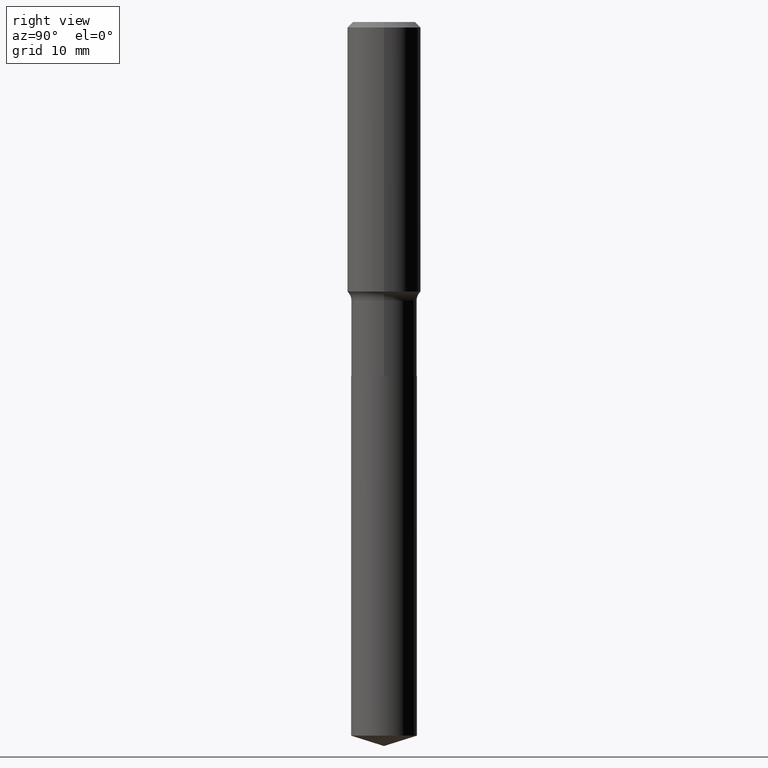
[diagram: clean part render]
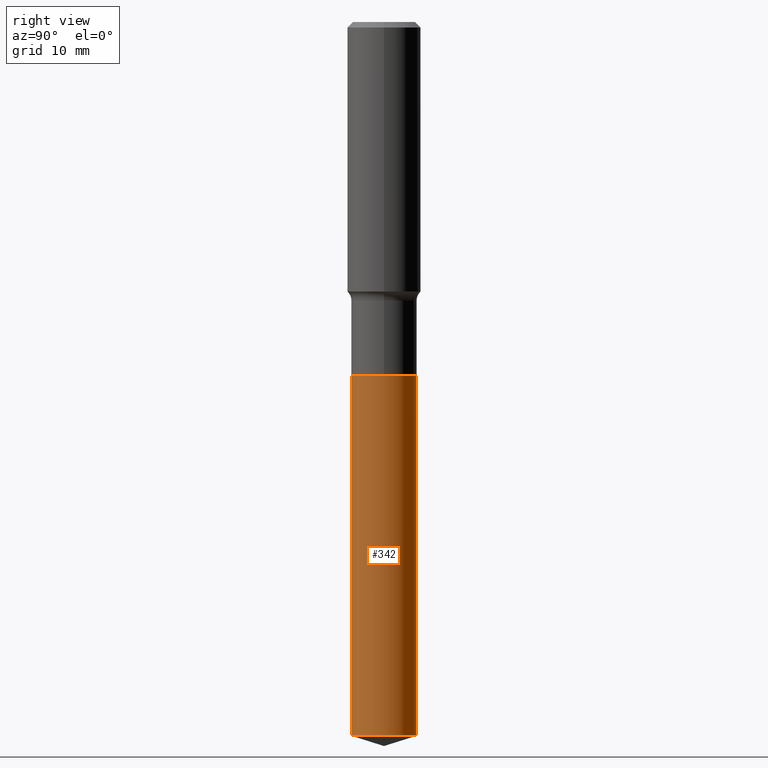
[diagram: same view with one face highlighted and labeled with its STEP entity id]
A machine part, right view. The second image highlights one B-rep face of the part: STEP entity #342.
In plain terms, the highlighted cylindrical surface (edge-blend (fillet) strip) has radius 5.3505 mm, axis along (-0, 0, 1).
Its self-contained STEP definition (entity closure, byte-faithful):
#15 = CARTESIAN_POINT ( 'NONE',  ( 1.496758272878763482E-15, 0.2106499999999920936, -2.271700000000000053 ) ) ;
#37 = CYLINDRICAL_SURFACE ( 'NONE', #288, 0.2106500000000000039 ) ;
#43 = CARTESIAN_POINT ( 'NONE',  ( 1.119856337333996399E-28, -1.598837658358541571E-14, -4.579282310122642308 ) ) ;
#46 = ORIENTED_EDGE ( 'NONE', *, *, #101, .F. ) ;
#47 = LINE ( 'NONE', #230, #479 ) ;
#48 = CARTESIAN_POINT ( 'NONE',  ( -1.470961088054556343E-15, -0.2106500000000079420, -2.271699999999998720 ) ) ;
#53 = DIRECTION ( 'NONE',  ( -2.445499716987026041E-29, 3.491437072815506423E-15, 1.000000000000000000 ) ) ;
#60 = ORIENTED_EDGE ( 'NONE', *, *, #441, .T. ) ;
#62 = AXIS2_PLACEMENT_3D ( 'NONE', #43, #356, #161 ) ;
#67 = DIRECTION ( 'NONE',  ( -2.445499716987026041E-29, 3.491437072815506423E-15, 1.000000000000000000 ) ) ;
#85 = DIRECTION ( 'NONE',  ( -2.445499716987026041E-29, 3.491437072815506423E-15, 1.000000000000000000 ) ) ;
#101 = EDGE_CURVE ( 'NONE', #485, #487, #401, .T. ) ;
#122 = LINE ( 'NONE', #240, #138 ) ;
#131 = VERTEX_POINT ( 'NONE', #357 ) ;
#138 = VECTOR ( 'NONE', #154, 39.37007874015748143 ) ;
#154 = DIRECTION ( 'NONE',  ( -2.445499716987026041E-29, 3.491437072815506423E-15, 1.000000000000000000 ) ) ;
#161 = DIRECTION ( 'NONE',  ( -6.982962677686265922E-15, -1.000000000000000000, 2.593731776562319814E-15 ) ) ;
#163 = CARTESIAN_POINT ( 'NONE',  ( 1.496758272878762693E-15, 0.2106499999999839612, -4.579282310122643196 ) ) ;
#181 = CIRCLE ( 'NONE', #62, 0.2106500000000000039 ) ;
#202 = AXIS2_PLACEMENT_3D ( 'NONE', #272, #85, #234 ) ;
#216 = CARTESIAN_POINT ( 'NONE',  ( 5.555371487010773044E-29, -7.931598157449970914E-15, -2.271699999999999608 ) ) ;
#223 = EDGE_CURVE ( 'NONE', #131, #485, #122, .T. ) ;
#230 = CARTESIAN_POINT ( 'NONE',  ( 1.496758272878706487E-15, 0.2106499999999920936, -2.271700000000000053 ) ) ;
#234 = DIRECTION ( 'NONE',  ( -6.982962677686265922E-15, -1.000000000000000000, 3.890597664843479129E-15 ) ) ;
#240 = CARTESIAN_POINT ( 'NONE',  ( -1.470961088054556343E-15, -0.2106500000000079420, -2.271699999999998720 ) ) ;
#262 = ORIENTED_EDGE ( 'NONE', *, *, #223, .F. ) ;
#272 = CARTESIAN_POINT ( 'NONE',  ( 5.555371487010773044E-29, -7.931598157449970914E-15, -2.271699999999999608 ) ) ;
#288 = AXIS2_PLACEMENT_3D ( 'NONE', #216, #67, #296 ) ;
#293 = FACE_OUTER_BOUND ( 'NONE', #334, .T. ) ;
#296 = DIRECTION ( 'NONE',  ( -6.982962677686265922E-15, -1.000000000000000000, 3.890597664843479129E-15 ) ) ;
#334 = EDGE_LOOP ( 'NONE', ( #471, #60, #46, #262 ) ) ;
#342 = ADVANCED_FACE ( 'NONE', ( #293 ), #37, .T. ) ;
#356 = DIRECTION ( 'NONE',  ( -2.445499716987026041E-29, 3.491437072815506423E-15, 1.000000000000000000 ) ) ;
#357 = CARTESIAN_POINT ( 'NONE',  ( -1.470961088054499348E-15, -0.2106500000000159634, -4.579282310122641420 ) ) ;
#401 = CIRCLE ( 'NONE', #202, 0.2106500000000000039 ) ;
#436 = EDGE_CURVE ( 'NONE', #131, #457, #181, .T. ) ;
#441 = EDGE_CURVE ( 'NONE', #457, #487, #47, .T. ) ;
#457 = VERTEX_POINT ( 'NONE', #163 ) ;
#471 = ORIENTED_EDGE ( 'NONE', *, *, #436, .T. ) ;
#479 = VECTOR ( 'NONE', #53, 39.37007874015748143 ) ;
#485 = VERTEX_POINT ( 'NONE', #48 ) ;
#487 = VERTEX_POINT ( 'NONE', #15 ) ;